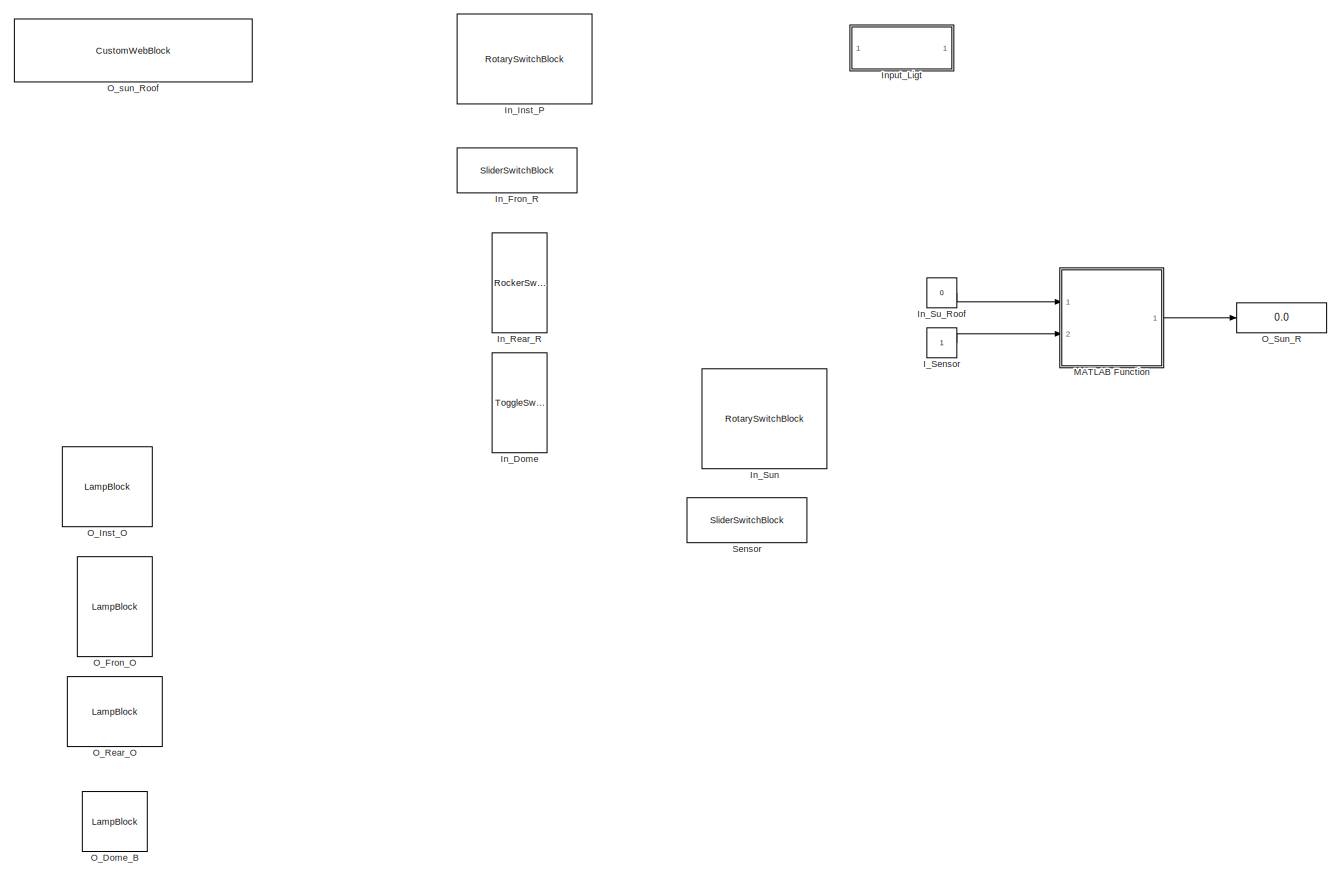
[diagram: root canvas - part 1/1, most of the canvas]
MODEL slx_2fad1e202046
KIND model
CONFIG AbsTol = auto
CONFIG EnableMultiTasking = off
CONFIG FixedStep = auto
CONFIG MaxStep = auto
CONFIG MinStep = auto
CONFIG RelTol = 1e-3
CONFIG SampleTimeConstraint = Unconstrained
CONFIG SolverName = VariableStepAuto
CONFIG StartTime = 0.0
CONFIG StopTime = 10.0
BLOCK [Constant] I_Sensor
BLOCK [ToggleSwitchBlock] In_Dome
BLOCK [SliderSwitchBlock] In_Fron_R
BLOCK [RotarySwitchBlock] In_Inst_P
BLOCK [RockerSwitchBlock] In_Rear_R
BLOCK [Constant] In_Su_Roof
  Value = 0
BLOCK [RotarySwitchBlock] In_Sun
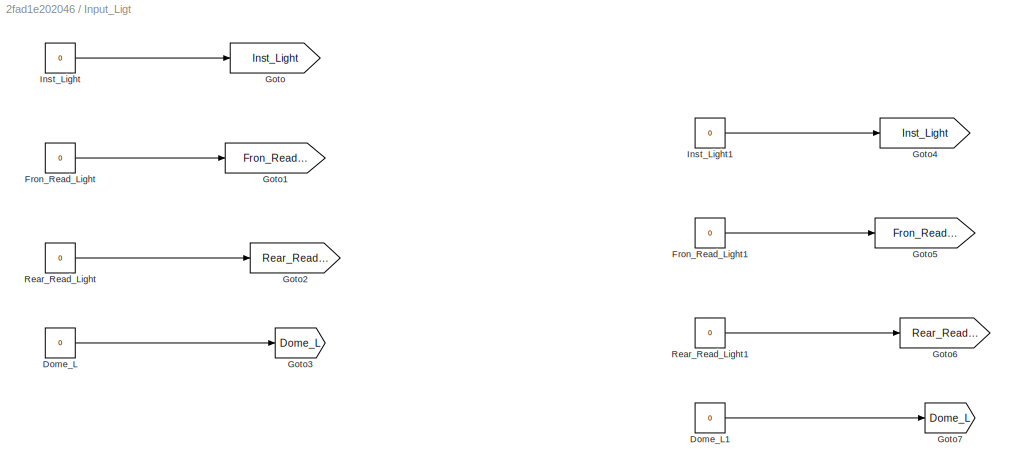
BLOCK [SubSystem] Input_Ligt
  Ports = []
  RequestExecContextInheritance = off
BLOCK [Constant] Input_Ligt/Dome_L
  Value = 0
BLOCK [Constant] Input_Ligt/Dome_L1
  Value = 0
BLOCK [Constant] Input_Ligt/Fron_Read_Light
  Value = 0
BLOCK [Constant] Input_Ligt/Fron_Read_Light1
  Value = 0
BLOCK [Goto] Input_Ligt/Goto
  GotoTag = Inst_Light
  TagVisibility = global
BLOCK [Goto] Input_Ligt/Goto1
  GotoTag = Fron_Read_Light
  TagVisibility = global
BLOCK [Goto] Input_Ligt/Goto2
  GotoTag = Rear_Read_Light
  TagVisibility = global
BLOCK [Goto] Input_Ligt/Goto3
  GotoTag = Dome_L
  TagVisibility = global
BLOCK [Goto] Input_Ligt/Goto4
  GotoTag = Inst_Light
  TagVisibility = global
BLOCK [Goto] Input_Ligt/Goto5
  GotoTag = Fron_Read_Light
  TagVisibility = global
BLOCK [Goto] Input_Ligt/Goto6
  GotoTag = Rear_Read_Light
  TagVisibility = global
BLOCK [Goto] Input_Ligt/Goto7
  GotoTag = Dome_L
  TagVisibility = global
BLOCK [Constant] Input_Ligt/Inst_Light
  Value = 0
BLOCK [Constant] Input_Ligt/Inst_Light1
  Value = 0
BLOCK [Constant] Input_Ligt/Rear_Read_Light
  Value = 0
BLOCK [Constant] Input_Ligt/Rear_Read_Light1
  Value = 0
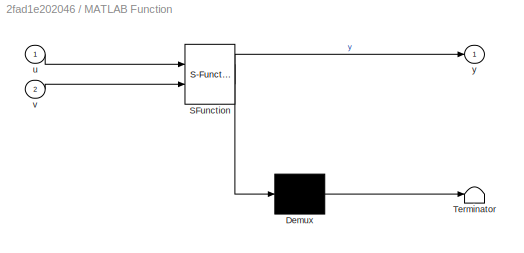
BLOCK [SubSystem] MATLAB Function
  ErrorFcn = Stateflow.Translate.translate
  PermitHierarchicalResolution = ExplicitOnly
  Ports = [2, 1]
  RequestExecContextInheritance = off
  SFBlockType = MATLAB Function
  TreatAsAtomicUnit = on
BLOCK [Demux] MATLAB Function/ Demux 
  Outputs = 1
  Ports = [1, 1]
BLOCK [S-Function] MATLAB Function/ SFunction 
  EnableBusSupport = on
  FunctionName = sf_sfun
  PortCounts = [2 2]
  Ports = [2, 2]
  SFcnIsStateOwnerBlock = off
  SFunctionDeploymentMode = off
  Tag = Stateflow S-Function 2
BLOCK [Terminator] MATLAB Function/ Terminator 
BLOCK [Inport] MATLAB Function/u
BLOCK [Inport] MATLAB Function/v
  Port = 2
BLOCK [Outport] MATLAB Function/y
BLOCK [LampBlock] O_Dome_B
BLOCK [LampBlock] O_Fron_O
BLOCK [LampBlock] O_Inst_O
BLOCK [LampBlock] O_Rear_O
BLOCK [Display] O_Sun_R
  Decimation = 1
  Ports = [1]
BLOCK [CustomWebBlock] O_sun_Roof
  Configuration = {"components":[{"name":"LinearScaleComponent","settings":{"bounds":{"max":15,"min":0,"tickInterval":"auto"},"internalTickHeightScaleFactor":0.5,"labelColor":[250,245,199],"labelFont":{"font":"Arial","fontSize":12},"labelTransparency":1,"needleImage":{"size":[21,75],"src":"data:image\/svg+xml;base64,PHN2ZyB4bWxucz0iaHR0cDovL3d3dy53My5vcmcvMjAwMC9zdmciIHhtbG5zOnhsaW5rPSJodHRwOi8vd3d3LnczLm9yZy8xOTk5...<+3825ch>
  ShowInitialText = on
BLOCK [SliderSwitchBlock] Sensor
LINE I_Sensor:1 -> MATLAB Function:2
LINE In_Su_Roof:1 -> MATLAB Function:1
LINE Input_Ligt/Dome_L1:1 -> Input_Ligt/Goto7:1
LINE Input_Ligt/Dome_L:1 -> Input_Ligt/Goto3:1
LINE Input_Ligt/Fron_Read_Light1:1 -> Input_Ligt/Goto5:1
LINE Input_Ligt/Fron_Read_Light:1 -> Input_Ligt/Goto1:1
LINE Input_Ligt/Inst_Light1:1 -> Input_Ligt/Goto4:1
LINE Input_Ligt/Inst_Light:1 -> Input_Ligt/Goto:1
LINE Input_Ligt/Rear_Read_Light1:1 -> Input_Ligt/Goto6:1
LINE Input_Ligt/Rear_Read_Light:1 -> Input_Ligt/Goto2:1
LINE MATLAB Function:1 -> O_Sun_R:1
CHART MATLAB Function states=1 transitions=1
  STATE_LABEL 'eML_blk_kernel()'
  STATE_LABEL 'SCRIPT:\nfunction y = fcn(u,v)\nif u == 1\n    for i = 1:5\n        y = u * i;\n    end\nelseif u == 2\n    for i = 1:5\n        y = u * i;\n    end\nelseif u == 3\n    for i = 1:5\n        y = u * i;\n    end\nelse\n    y = u;\nend\nif v == 1 && u ~= 0\n   y = 15;\nend\n\n'
CHART  states=0 transitions=0
